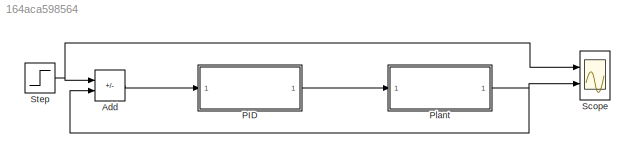
MODEL slx_164aca598564
KIND model
CONFIG AbsTol = auto
CONFIG EnableMultiTasking = off
CONFIG FixedStep = auto
CONFIG MaxStep = auto
CONFIG MinStep = auto
CONFIG RelTol = 1e-3
CONFIG SampleTimeConstraint = Unconstrained
CONFIG SolverName = VariableStepAuto
CONFIG StartTime = 0.0
CONFIG StopTime = 10.0
BLOCK [Sum] Add
  IconShape = rectangular
  Inputs = +-
  Ports = [2, 1]
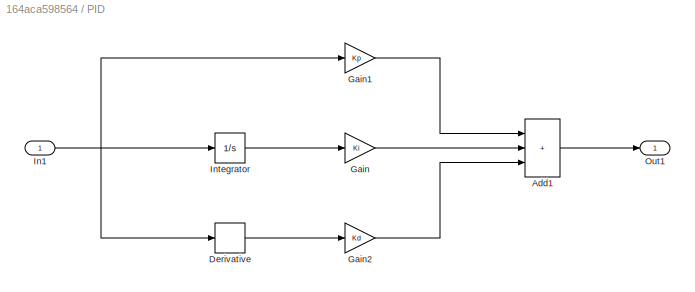
BLOCK [SubSystem] PID
  Ports = [1, 1]
  RequestExecContextInheritance = off
BLOCK [Sum] PID/Add1
  IconShape = rectangular
  Inputs = +++
  Ports = [3, 1]
BLOCK [Derivative] PID/Derivative
BLOCK [Gain] PID/Gain
  Gain = Ki
BLOCK [Gain] PID/Gain1
  Gain = Kp
BLOCK [Gain] PID/Gain2
  Gain = Kd
BLOCK [Inport] PID/In1
BLOCK [Integrator] PID/Integrator
  Ports = [1, 1]
BLOCK [Outport] PID/Out1
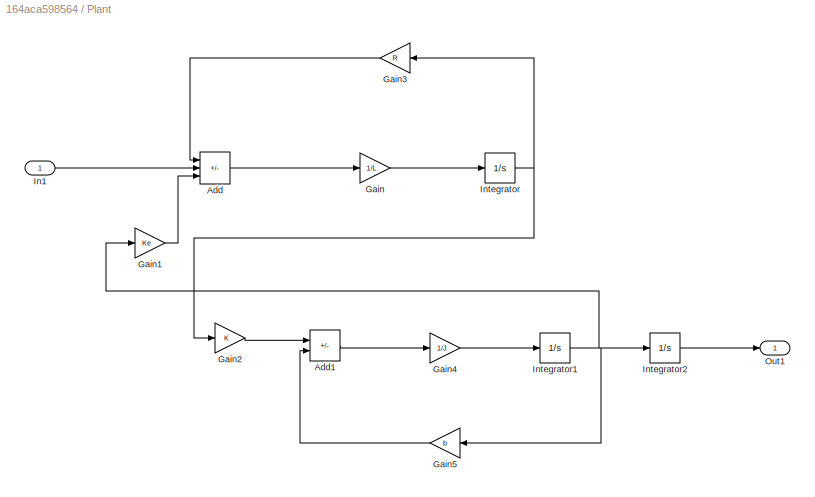
BLOCK [SubSystem] Plant
  Ports = [1, 1]
  RequestExecContextInheritance = off
BLOCK [Sum] Plant/Add
  IconShape = rectangular
  Inputs = -+-
  Ports = [3, 1]
BLOCK [Sum] Plant/Add1
  IconShape = rectangular
  Inputs = +-
  Ports = [2, 1]
BLOCK [Gain] Plant/Gain
  Gain = 1/L
BLOCK [Gain] Plant/Gain1
  Gain = Ke
BLOCK [Gain] Plant/Gain2
  Gain = K
BLOCK [Gain] Plant/Gain3
  Gain = R
  NameLocation = top
BLOCK [Gain] Plant/Gain4
  Gain = 1/J
BLOCK [Gain] Plant/Gain5
  Gain = b
  NameLocation = top
BLOCK [Inport] Plant/In1
BLOCK [Integrator] Plant/Integrator
  Ports = [1, 1]
BLOCK [Integrator] Plant/Integrator1
  Ports = [1, 1]
BLOCK [Integrator] Plant/Integrator2
  Ports = [1, 1]
BLOCK [Outport] Plant/Out1
BLOCK [Scope] Scope
  Floating = off
  NumInputPorts = 2
  Ports = [2]
  ScopeSpecificationString = Simulink.scopes.TimeScopeBlockCfg('CurrentConfiguration', extmgr.ConfigurationSet(extmgr.Configuration('Core','General UI',true),extmgr.Configuration('Core','Source UI',true),extmgr.Configuration('Sources','WiredSimulink',true),extmgr.Configuration('Visuals','Time Domain',true,'SerializedDisplays',{struct('MinYLimReal','-0.125','MaxYLimReal','1.125','YLabelReal','','MinYLimMag','0.00000','MaxYLimM...<+1997ch>
BLOCK [Step] Step
  SampleTime = 0
LINE Add:1 -> PID:1
LINE PID/Add1:1 -> PID/Out1:1
LINE PID/Derivative:1 -> PID/Gain2:1
LINE PID/Gain1:1 -> PID/Add1:1
LINE PID/Gain2:1 -> PID/Add1:3
LINE PID/Gain:1 -> PID/Add1:2
NET PID/In1:1 -> PID/Derivative:1, PID/Gain1:1, PID/Integrator:1
LINE PID/Integrator:1 -> PID/Gain:1
LINE PID:1 -> Plant:1
LINE Plant/Add1:1 -> Plant/Gain4:1
LINE Plant/Add:1 -> Plant/Gain:1
LINE Plant/Gain1:1 -> Plant/Add:3
LINE Plant/Gain2:1 -> Plant/Add1:1
LINE Plant/Gain3:1 -> Plant/Add:1
LINE Plant/Gain4:1 -> Plant/Integrator1:1
LINE Plant/Gain5:1 -> Plant/Add1:2
LINE Plant/Gain:1 -> Plant/Integrator:1
LINE Plant/In1:1 -> Plant/Add:2
NET Plant/Integrator1:1 -> Plant/Gain1:1, Plant/Gain5:1, Plant/Integrator2:1
LINE Plant/Integrator2:1 -> Plant/Out1:1
NET Plant/Integrator:1 -> Plant/Gain2:1, Plant/Gain3:1
NET Plant:1 -> Add:2, Scope:2
NET Step:1 -> Add:1, Scope:1
note: NET lines group one-source signal fan-out (src -> all destinations, sorted); 1:1 wires keep LINE
